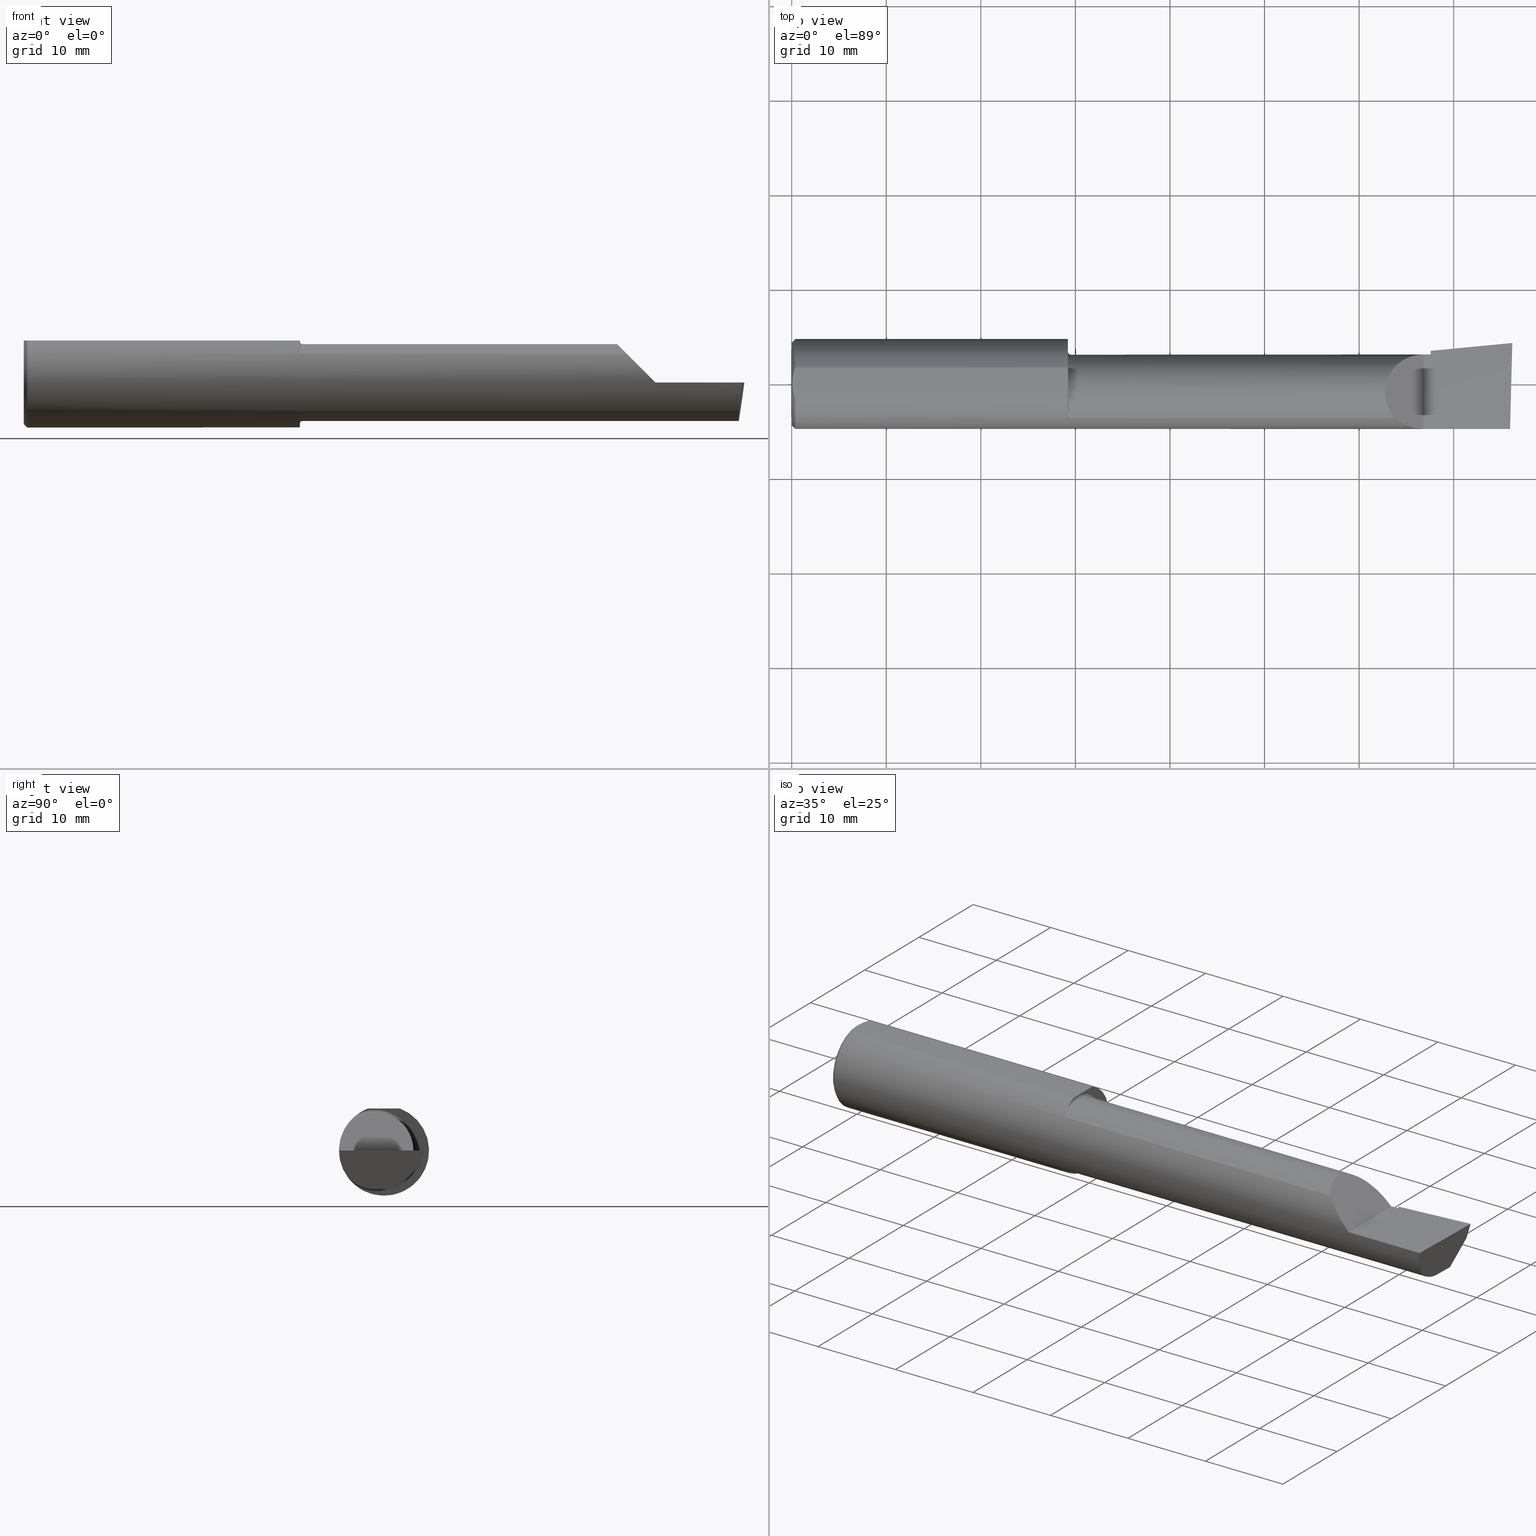
[diagram: canonical four-view strip — front | top / right | iso, engineering-drawing reading convention]
A machine part, canonical four-view strip (front | top / right | iso — engineering-drawing reading convention). The complete STEP part file that produces these views, byte-faithful:
ISO-10303-21;
HEADER;
FILE_DESCRIPTION (( 'STEP AP214' ),
    '1' );
FILE_NAME ('B3601800.STEP',
    '2020-05-06T18:22:52',
    ( '' ),
    ( '' ),
    'SwSTEP 2.0',
    'SolidWorks 2018',
    '' );
FILE_SCHEMA (( 'AUTOMOTIVE_DESIGN' ));
ENDSEC;

DATA;
#1 = ORIENTED_EDGE ( 'NONE', *, *, #225, .T. ) ;
#2 = CARTESIAN_POINT ( 'NONE',  ( 1.160000000000000142, -0.1454917112299473902, -0.1180346748349042768 ) ) ;
#3 =( BOUNDED_CURVE ( )  B_SPLINE_CURVE ( 3, ( #583, #493, #575, #405 ),
 .UNSPECIFIED., .F., .T. ) 
 B_SPLINE_CURVE_WITH_KNOTS ( ( 4, 4 ),
 ( 0.6791649766275665856, 1.360746882514762168 ),
 .UNSPECIFIED. ) 
 CURVE ( )  GEOMETRIC_REPRESENTATION_ITEM ( )  RATIONAL_B_SPLINE_CURVE ( ( 1.000000000000000000, 0.9616603987079550553, 0.9616603987079550553, 1.000000000000000000 ) ) 
 REPRESENTATION_ITEM ( '' )  );
#4 = CARTESIAN_POINT ( 'NONE',  ( 2.586590019116435268, -0.1873499999999999610, 0.04340998088356424339 ) ) ;
#5 = CYLINDRICAL_SURFACE ( 'NONE', #334, 0.1600499999999999146 ) ;
#6 = CARTESIAN_POINT ( 'NONE',  ( 2.659999999999999698, -0.03740000000000000269, 0.0000000000000000000 ) ) ;
#7 = CARTESIAN_POINT ( 'NONE',  ( 9.109005653874777379E-19, 0.1226499999999998841, 3.563723795045361633E-16 ) ) ;
#8 = ORIENTED_EDGE ( 'NONE', *, *, #251, .T. ) ;
#9 = ORIENTED_EDGE ( 'NONE', *, *, #76, .T. ) ;
#10 = DIRECTION ( 'NONE',  ( 0.0000000000000000000, -1.000000000000000000, 0.0000000000000000000 ) ) ;
#11 = VECTOR ( 'NONE', #420, 39.37007874015748854 ) ;
#12 = VERTEX_POINT ( 'NONE', #158 ) ;
#13 = VERTEX_POINT ( 'NONE', #417 ) ;
#14 = AXIS2_PLACEMENT_3D ( 'NONE', #380, #413, #109 ) ;
#15 = DIRECTION ( 'NONE',  ( 0.9953961983671787417, 0.09584575252022435599, -1.409044964823803883E-16 ) ) ;
#16 = VERTEX_POINT ( 'NONE', #198 ) ;
#17 = EDGE_CURVE ( 'NONE', #322, #478, #63, .T. ) ;
#18 = CARTESIAN_POINT ( 'NONE',  ( 2.660000000000000142, -0.03740000000000000269, 0.0000000000000000000 ) ) ;
#19 = LINE ( 'NONE', #389, #20 ) ;
#20 = VECTOR ( 'NONE', #466, 39.37007874015748143 ) ;
#21 = ORIENTED_EDGE ( 'NONE', *, *, #149, .T. ) ;
#22 = CARTESIAN_POINT ( 'NONE',  ( 0.0000000000000000000, 2.202527268266512578E-17, 0.1723499999999996424 ) ) ;
#23 = ORIENTED_EDGE ( 'NONE', *, *, #34, .T. ) ;
#24 = PLANE ( 'NONE',  #487 ) ;
#25 = VECTOR ( 'NONE', #180, 39.37007874015748143 ) ;
#26 = ORIENTED_EDGE ( 'NONE', *, *, #255, .F. ) ;
#27 = CARTESIAN_POINT ( 'NONE',  ( 0.0000000000000000000, 0.0000000000000000000, 0.0000000000000000000 ) ) ;
#28 = PLANE ( 'NONE',  #14 ) ;
#29 = ADVANCED_FACE ( 'NONE', ( #272 ), #28, .T. ) ;
#30 = EDGE_LOOP ( 'NONE', ( #593, #498, #125, #168 ) ) ;
#31 = CARTESIAN_POINT ( 'NONE',  ( 1.160000000000000142, -0.1454917112299473902, 0.1180346748349042768 ) ) ;
#32 = B_SPLINE_CURVE_WITH_KNOTS ( 'NONE', 3,
 ( #2, #533, #430, #94, #352, #99, #528, #475, #45, #564, #532, #248, #569, #97 ),
 .UNSPECIFIED., .F., .F.,
 ( 4, 2, 2, 2, 2, 2, 4 ),
 ( 1.967643395620002325E-07, 5.001319782656137654E-05, 9.982963131356075023E-05, 0.0001994624982875594840, 0.0003987282322355602585, 0.0007972597001315618074, 0.001594322635923565989 ),
 .UNSPECIFIED. ) ;
#33 = CIRCLE ( 'NONE', #126, 0.1600499999999997758 ) ;
#34 = EDGE_CURVE ( 'NONE', #259, #329, #113, .T. ) ;
#35 = SHAPE_DEFINITION_REPRESENTATION ( #213, #136 ) ;
#36 = ORIENTED_EDGE ( 'NONE', *, *, #568, .F. ) ;
#37 = SURFACE_SIDE_STYLE ('',( #175 ) ) ;
#38 = ORIENTED_EDGE ( 'NONE', *, *, #273, .F. ) ;
#39 = PRODUCT_RELATED_PRODUCT_CATEGORY ( 'part', '', ( #263 ) ) ;
#40 = DIRECTION ( 'NONE',  ( 0.0000000000000000000, -1.000000000000000000, 0.0000000000000000000 ) ) ;
#41 = VECTOR ( 'NONE', #556, 39.37007874015748143 ) ;
#42 = AXIS2_PLACEMENT_3D ( 'NONE', #353, #157, #10 ) ;
#43 = CARTESIAN_POINT ( 'NONE',  ( 2.977223734188808368, -0.1454917112299468074, -0.1180346748349050540 ) ) ;
#44 = ORIENTED_EDGE ( 'NONE', *, *, #317, .F. ) ;
#45 = CARTESIAN_POINT ( 'NONE',  ( 1.154404192622242142, -0.1382376748423456703, -0.1264781021717274467 ) ) ;
#46 = CONICAL_SURFACE ( 'NONE', #122, 0.1873499999999999888, 0.7853981633974602694 ) ;
#47 = FACE_OUTER_BOUND ( 'NONE', #541, .T. ) ;
#48 = DIRECTION ( 'NONE',  ( 0.0000000000000000000, 0.0000000000000000000, -1.000000000000000000 ) ) ;
#49 = PLANE ( 'NONE',  #367 ) ;
#50 = FILL_AREA_STYLE ('',( #203 ) ) ;
#51 = CARTESIAN_POINT ( 'NONE',  ( 0.003000000000000218638, 2.334609607045083916E-17, 0.1753499999999999781 ) ) ;
#52 = ORIENTED_EDGE ( 'NONE', *, *, #314, .F. ) ;
#53 = PRODUCT_CONTEXT ( 'NONE', #361, 'mechanical' ) ;
#54 = CARTESIAN_POINT ( 'NONE',  ( 3.000000000000013323, 0.1706500000000293615, 9.155799222047003664E-14 ) ) ;
#55 = AXIS2_PLACEMENT_3D ( 'NONE', #337, #135, #238 ) ;
#56 = FACE_OUTER_BOUND ( 'NONE', #548, .T. ) ;
#57 =( BOUNDED_CURVE ( )  B_SPLINE_CURVE ( 3, ( #43, #587, #549, #282 ),
 .UNSPECIFIED., .F., .F. ) 
 B_SPLINE_CURVE_WITH_KNOTS ( ( 4, 4 ),
 ( 5.751779107031517846, 6.493234751459720400 ),
 .UNSPECIFIED. ) 
 CURVE ( )  GEOMETRIC_REPRESENTATION_ITEM ( )  RATIONAL_B_SPLINE_CURVE ( ( 1.000000000000000000, 0.9547092712975350226, 0.9547092712975350226, 1.000000000000000000 ) ) 
 REPRESENTATION_ITEM ( '' )  );
#58 = EDGE_CURVE ( 'NONE', #310, #259, #116, .T. ) ;
#59 = COLOUR_RGB ( '',0.7529411764705882248, 0.7529411764705882248, 0.7529411764705882248 ) ;
#60 = ORIENTED_EDGE ( 'NONE', *, *, #151, .T. ) ;
#61 = FACE_OUTER_BOUND ( 'NONE', #231, .T. ) ;
#62 = DIRECTION ( 'NONE',  ( -1.000000000000000000, -0.0000000000000000000, -0.0000000000000000000 ) ) ;
#63 = LINE ( 'NONE', #219, #139 ) ;
#64 = B_SPLINE_CURVE_WITH_KNOTS ( 'NONE', 3,
 ( #130, #415, #506, #416, #220, #546 ),
 .UNSPECIFIED., .F., .F.,
 ( 4, 2, 4 ),
 ( 0.003480013901590607410, 0.004330767971208085432, 0.005181522040825563453 ),
 .UNSPECIFIED. ) ;
#65 = DIRECTION ( 'NONE',  ( 1.000000000000000000, 0.0000000000000000000, 0.0000000000000000000 ) ) ;
#66 = EDGE_CURVE ( 'NONE', #184, #16, #585, .T. ) ;
#67 = ORIENTED_EDGE ( 'NONE', *, *, #244, .F. ) ;
#68 = ORIENTED_EDGE ( 'NONE', *, *, #261, .F. ) ;
#69 = DIRECTION ( 'NONE',  ( -1.671023757235059908E-18, -0.2936076258024052921, -0.9559260233253797923 ) ) ;
#70 = FACE_OUTER_BOUND ( 'NONE', #438, .T. ) ;
#71 = DIRECTION ( 'NONE',  ( -5.691349986800549142E-18, -1.000000000000000000, 0.0000000000000000000 ) ) ;
#72 =( GEOMETRIC_REPRESENTATION_CONTEXT ( 3 ) GLOBAL_UNCERTAINTY_ASSIGNED_CONTEXT ( ( #436 ) ) GLOBAL_UNIT_ASSIGNED_CONTEXT ( ( #295, #561, #235 ) ) REPRESENTATION_CONTEXT ( 'NONE', 'WORKASPACE' ) );
#73 = TOROIDAL_SURFACE ( 'NONE', #221, 0.1700499999999998124, 0.01000000000000002102 ) ;
#74 = CARTESIAN_POINT ( 'NONE',  ( 0.01499999999999999424, 0.06597272163553677404, 0.1753499999999999226 ) ) ;
#75 = CARTESIAN_POINT ( 'NONE',  ( 1.150000000000000133, -0.1013606951871667550, 0.1575627873933888867 ) ) ;
#76 = EDGE_CURVE ( 'NONE', #170, #332, #266, .T. ) ;
#77 = EDGE_LOOP ( 'NONE', ( #114, #9, #414, #360 ) ) ;
#78 = LINE ( 'NONE', #395, #242 ) ;
#79 = ADVANCED_FACE ( 'NONE', ( #100 ), #172, .T. ) ;
#80 = EDGE_CURVE ( 'NONE', #297, #179, #425, .T. ) ;
#81 = VECTOR ( 'NONE', #312, 39.37007874015748143 ) ;
#82 = FACE_OUTER_BOUND ( 'NONE', #456, .T. ) ;
#83 =( BOUNDED_CURVE ( )  B_SPLINE_CURVE ( 3, ( #98, #4, #191, #303 ),
 .UNSPECIFIED., .F., .T. ) 
 B_SPLINE_CURVE_WITH_KNOTS ( ( 4, 4 ),
 ( 4.712388980384689674, 5.393970886271887366 ),
 .UNSPECIFIED. ) 
 CURVE ( )  GEOMETRIC_REPRESENTATION_ITEM ( )  RATIONAL_B_SPLINE_CURVE ( ( 1.000000000000000000, 0.9616603987079549443, 0.9616603987079549443, 1.000000000000000000 ) ) 
 REPRESENTATION_ITEM ( '' )  );
#84 = DIRECTION ( 'NONE',  ( 0.0000000000000000000, 0.2936076258024052366, 0.9559260233253797923 ) ) ;
#85 = VERTEX_POINT ( 'NONE', #253 ) ;
#86 = ORIENTED_EDGE ( 'NONE', *, *, #17, .T. ) ;
#87 = ORIENTED_EDGE ( 'NONE', *, *, #199, .F. ) ;
#88 = DIRECTION ( 'NONE',  ( 0.0000000000000000000, 0.6963153109074925462, 0.7177360153954948085 ) ) ;
#89 = FACE_OUTER_BOUND ( 'NONE', #543, .T. ) ;
#90 = FILL_AREA_STYLE_COLOUR ( '', #204 ) ;
#91 = AXIS2_PLACEMENT_3D ( 'NONE', #521, #424, #84 ) ;
#92 = CIRCLE ( 'NONE', #577, 0.1723499999999996424 ) ;
#93 = PRESENTATION_STYLE_ASSIGNMENT (( #111 ) ) ;
#94 = CARTESIAN_POINT ( 'NONE',  ( 1.157909242887170453, -0.1445870704379424998, -0.1191421054870949042 ) ) ;
#95 = VERTEX_POINT ( 'NONE', #223 ) ;
#96 = AXIS2_PLACEMENT_3D ( 'NONE', #450, #421, #227 ) ;
#97 = CARTESIAN_POINT ( 'NONE',  ( 1.150000000000000133, -0.1013606951871667550, -0.1575627873933888867 ) ) ;
#98 = CARTESIAN_POINT ( 'NONE',  ( 2.629999999999999893, -0.1873499999999999888, -1.592040838891560883E-17 ) ) ;
#99 = CARTESIAN_POINT ( 'NONE',  ( 1.156664569472227955, -0.1431262185210695759, -0.1208975608635225463 ) ) ;
#100 = FACE_OUTER_BOUND ( 'NONE', #77, .T. ) ;
#101 = AXIS2_PLACEMENT_3D ( 'NONE', #313, #439, #112 ) ;
#102 = LINE ( 'NONE', #379, #212 ) ;
#103 = PLANE ( 'NONE',  #190 ) ;
#104 = CARTESIAN_POINT ( 'NONE',  ( 2.992127980275562482, 0.1514633278254525761, -0.05999999999999999778 ) ) ;
#105 = ORIENTED_EDGE ( 'NONE', *, *, #364, .T. ) ;
#106 = ORIENTED_EDGE ( 'NONE', *, *, #236, .F. ) ;
#107 = CARTESIAN_POINT ( 'NONE',  ( 2.511965325165093521, -0.1454917112299465853, 0.1180346748349052760 ) ) ;
#108 = ORIENTED_EDGE ( 'NONE', *, *, #283, .F. ) ;
#109 = DIRECTION ( 'NONE',  ( -5.691349986800549142E-18, -1.000000000000000000, 0.0000000000000000000 ) ) ;
#110 = EDGE_CURVE ( 'NONE', #310, #95, #320, .T. ) ;
#111 = SURFACE_STYLE_USAGE ( .BOTH. , #402 ) ;
#112 = DIRECTION ( 'NONE',  ( 0.1219104985252887768, 0.0000000000000000000, 0.9925410975618670362 ) ) ;
#113 = LINE ( 'NONE', #326, #81 ) ;
#114 = ORIENTED_EDGE ( 'NONE', *, *, #273, .T. ) ;
#115 = ORIENTED_EDGE ( 'NONE', *, *, #119, .T. ) ;
#116 = B_SPLINE_CURVE_WITH_KNOTS ( 'NONE', 3,
 ( #431, #458, #307, #258, #510, #574, #572, #570, #552, #545, #537, #536, #534, #508 ),
 .UNSPECIFIED., .F., .F.,
 ( 4, 2, 2, 2, 2, 2, 4 ),
 ( 0.0006605532644857246925, 0.001446564801351223669, 0.001839570569783973699, 0.002036073454000349690, 0.002134324896108538011, 0.002183450617162631738, 0.002232576338216725898 ),
 .UNSPECIFIED. ) ;
#117 = CARTESIAN_POINT ( 'NONE',  ( 0.003000000000000171800, -0.01126410975715119375, 0.1753500000000000059 ) ) ;
#118 = CIRCLE ( 'NONE', #539, 0.1873499999999999888 ) ;
#119 = EDGE_CURVE ( 'NONE', #153, #142, #411, .T. ) ;
#120 = ORIENTED_EDGE ( 'NONE', *, *, #225, .F. ) ;
#121 = CARTESIAN_POINT ( 'NONE',  ( 0.01499999999999999424, 0.0000000000000000000, 0.0000000000000000000 ) ) ;
#122 = AXIS2_PLACEMENT_3D ( 'NONE', #121, #65, #410 ) ;
#123 = ORIENTED_EDGE ( 'NONE', *, *, #328, .F. ) ;
#124 = DIRECTION ( 'NONE',  ( 1.000000000000000000, 0.0000000000000000000, 0.0000000000000000000 ) ) ;
#125 = ORIENTED_EDGE ( 'NONE', *, *, #515, .F. ) ;
#126 = AXIS2_PLACEMENT_3D ( 'NONE', #333, #589, #40 ) ;
#127 = CARTESIAN_POINT ( 'NONE',  ( 3.000188977433813520, 0.1711105994646681117, 0.001440373173037378914 ) ) ;
#128 = CARTESIAN_POINT ( 'NONE',  ( 2.659999999999999698, 0.1346188438362104778, -0.01072093908174515803 ) ) ;
#129 = VERTEX_POINT ( 'NONE', #454 ) ;
#130 = CARTESIAN_POINT ( 'NONE',  ( 0.003000000000000218638, 2.334609607045083916E-17, 0.1753499999999999781 ) ) ;
#131 = PRESENTATION_LAYER_ASSIGNMENT (  '', '', ( #397 ) ) ;
#132 = ORIENTED_EDGE ( 'NONE', *, *, #460, .F. ) ;
#133 = EDGE_LOOP ( 'NONE', ( #239, #237, #388, #115, #404, #287 ) ) ;
#134 = CARTESIAN_POINT ( 'NONE',  ( 2.659999999999999698, 0.1379117236128366286, 0.0000000000000000000 ) ) ;
#135 = DIRECTION ( 'NONE',  ( -1.415561931153809475E-16, 0.0000000000000000000, -1.000000000000000000 ) ) ;
#136 = ADVANCED_BREP_SHAPE_REPRESENTATION ( 'B3601800', ( #195, #444 ), #205 ) ;
#137 = ADVANCED_FACE ( 'NONE', ( #308 ), #73, .F. ) ;
#138 = CARTESIAN_POINT ( 'NONE',  ( 2.659999999999999698, 0.02241901528670496579, -0.1600499999999999701 ) ) ;
#139 = VECTOR ( 'NONE', #230, 39.37007874015748143 ) ;
#140 = CARTESIAN_POINT ( 'NONE',  ( 0.0000000000000000000, 0.0000000000000000000, -0.1723499999999996424 ) ) ;
#141 = ADVANCED_FACE ( 'NONE', ( #435 ), #5, .T. ) ;
#142 = VERTEX_POINT ( 'NONE', #54 ) ;
#143 = EDGE_LOOP ( 'NONE', ( #60, #474 ) ) ;
#144 = DIRECTION ( 'NONE',  ( 0.0000000000000000000, 0.0000000000000000000, 1.000000000000000000 ) ) ;
#145 = PLANE ( 'NONE',  #91 ) ;
#146 = DIRECTION ( 'NONE',  ( 1.000000000000000000, 0.0000000000000000000, 0.0000000000000000000 ) ) ;
#147 = VERTEX_POINT ( 'NONE', #51 ) ;
#148 = ORIENTED_EDGE ( 'NONE', *, *, #249, .F. ) ;
#149 = EDGE_CURVE ( 'NONE', #297, #12, #384, .T. ) ;
#150 = LINE ( 'NONE', #274, #538 ) ;
#151 = EDGE_CURVE ( 'NONE', #275, #563, #92, .T. ) ;
#152 = DIRECTION ( 'NONE',  ( 1.000000000000000000, -5.691349986800549142E-18, 0.0000000000000000000 ) ) ;
#153 = VERTEX_POINT ( 'NONE', #104 ) ;
#154 = CARTESIAN_POINT ( 'NONE',  ( 1.160000000000000142, -0.03740000000000000269, 0.0000000000000000000 ) ) ;
#155 = CIRCLE ( 'NONE', #523, 0.1723499999999996424 ) ;
#156 = EDGE_CURVE ( 'NONE', #524, #329, #83, .T. ) ;
#157 = DIRECTION ( 'NONE',  ( -1.000000000000000000, 5.691349986800549142E-18, -0.0000000000000000000 ) ) ;
#158 = CARTESIAN_POINT ( 'NONE',  ( 2.659999999999999698, 0.1028057716897401025, -0.07719031082256659626 ) ) ;
#159 =( CONVERSION_BASED_UNIT ( 'INCH', #447 ) LENGTH_UNIT ( ) NAMED_UNIT ( #330 ) );
#160 = APPLICATION_PROTOCOL_DEFINITION ( 'draft international standard', 'automotive_design', 1998, #311 ) ;
#161 = ORIENTED_EDGE ( 'NONE', *, *, #236, .T. ) ;
#162 = PRODUCT_DEFINITION ( 'UNKNOWN', '', #470, #547 ) ;
#163 = ORIENTED_EDGE ( 'NONE', *, *, #210, .F. ) ;
#164 = PLANE ( 'NONE',  #409 ) ;
#165 = DIRECTION ( 'NONE',  ( 0.0000000000000000000, 1.000000000000000000, 0.0000000000000000000 ) ) ;
#166 = VECTOR ( 'NONE', #485, 39.37007874015748143 ) ;
#167 = DIRECTION ( 'NONE',  ( -1.000000000000000000, 5.691349986800549142E-18, -0.0000000000000000000 ) ) ;
#168 = ORIENTED_EDGE ( 'NONE', *, *, #382, .T. ) ;
#169 = DIRECTION ( 'NONE',  ( 0.0000000000000000000, 0.0000000000000000000, 1.000000000000000000 ) ) ;
#170 = VERTEX_POINT ( 'NONE', #432 ) ;
#171 = CIRCLE ( 'NONE', #544, 0.1600500000000000533 ) ;
#172 = PLANE ( 'NONE',  #96 ) ;
#173 = CARTESIAN_POINT ( 'NONE',  ( 0.0000000000000000000, 0.0000000000000000000, 0.0000000000000000000 ) ) ;
#174 = VECTOR ( 'NONE', #291, 39.37007874015748143 ) ;
#175 = SURFACE_STYLE_FILL_AREA ( #391 ) ;
#176 = CARTESIAN_POINT ( 'NONE',  ( 2.659999999999999698, -0.2500000000000000555, -2.016709418237695393E-17 ) ) ;
#177 = EDGE_CURVE ( 'NONE', #259, #478, #33, .T. ) ;
#178 = CARTESIAN_POINT ( 'NONE',  ( 2.511965325165093521, -0.1454917112299465853, 0.1180346748349052760 ) ) ;
#179 = VERTEX_POINT ( 'NONE', #138 ) ;
#180 = DIRECTION ( 'NONE',  ( -3.962974135542378101E-18, -0.6963153109074925462, -0.7177360153954948085 ) ) ;
#181 = CARTESIAN_POINT ( 'NONE',  ( 2.659999999999999698, -0.03740000000000000269, -0.1600499999999999701 ) ) ;
#182 = ADVANCED_FACE ( 'NONE', ( #461 ), #509, .T. ) ;
#183 = CARTESIAN_POINT ( 'NONE',  ( 0.01499999999999999424, 0.0000000000000000000, 0.0000000000000000000 ) ) ;
#184 = VERTEX_POINT ( 'NONE', #381 ) ;
#185 = DIRECTION ( 'NONE',  ( 0.7071067811865390240, 0.0000000000000000000, -0.7071067811865560104 ) ) ;
#186 = LINE ( 'NONE', #426, #260 ) ;
#187 = ORIENTED_EDGE ( 'NONE', *, *, #17, .F. ) ;
#188 = AXIS2_PLACEMENT_3D ( 'NONE', #6, #558, #453 ) ;
#189 = ORIENTED_EDGE ( 'NONE', *, *, #515, .T. ) ;
#190 = AXIS2_PLACEMENT_3D ( 'NONE', #194, #354, #48 ) ;
#191 = CARTESIAN_POINT ( 'NONE',  ( 2.545676520271627385, -0.1728409665178087251, 0.08432347972837181405 ) ) ;
#192 = CYLINDRICAL_SURFACE ( 'NONE', #535, 0.1873499999999999888 ) ;
#193 = DIRECTION ( 'NONE',  ( -1.000000000000000000, -0.0000000000000000000, -0.0000000000000000000 ) ) ;
#194 = CARTESIAN_POINT ( 'NONE',  ( 0.0000000000000000000, 0.0000000000000000000, 0.0000000000000000000 ) ) ;
#195 = MANIFOLD_SOLID_BREP ( '7F1CB05C-6BE0-4437-8D9E-CB354DC0C69A-GAAFaceID8', #559 ) ;
#196 = VECTOR ( 'NONE', #280, 39.37007874015748143 ) ;
#197 = VERTEX_POINT ( 'NONE', #181 ) ;
#198 = CARTESIAN_POINT ( 'NONE',  ( 2.974893613600465336, -0.03740000000000000269, -0.1600499999999999701 ) ) ;
#199 = EDGE_CURVE ( 'NONE', #518, #170, #344, .T. ) ;
#200 = ORIENTED_EDGE ( 'NONE', *, *, #442, .F. ) ;
#201 = EDGE_CURVE ( 'NONE', #275, #13, #186, .T. ) ;
#202 =( NAMED_UNIT ( * ) SI_UNIT ( $, .STERADIAN. ) SOLID_ANGLE_UNIT ( ) );
#203 = FILL_AREA_STYLE_COLOUR ( '', #59 ) ;
#204 = COLOUR_RGB ( '',0.7529411764705882248, 0.7529411764705882248, 0.7529411764705882248 ) ;
#205 =( GEOMETRIC_REPRESENTATION_CONTEXT ( 3 ) GLOBAL_UNCERTAINTY_ASSIGNED_CONTEXT ( ( #428 ) ) GLOBAL_UNIT_ASSIGNED_CONTEXT ( ( #477, #348, #254 ) ) REPRESENTATION_CONTEXT ( 'NONE', 'WORKASPACE' ) );
#206 =( BOUNDED_CURVE ( )  B_SPLINE_CURVE ( 3, ( #178, #471, #396, #527 ),
 .UNSPECIFIED., .F., .F. ) 
 B_SPLINE_CURVE_WITH_KNOTS ( ( 4, 4 ),
 ( 5.541729662751385455, 7.853981633974482790 ),
 .UNSPECIFIED. ) 
 CURVE ( )  GEOMETRIC_REPRESENTATION_ITEM ( )  RATIONAL_B_SPLINE_CURVE ( ( 1.000000000000000000, 0.6019254882129718709, 0.6019254882129718709, 1.000000000000000000 ) ) 
 REPRESENTATION_ITEM ( '' )  );
#207 = PLANE ( 'NONE',  #101 ) ;
#208 = DIRECTION ( 'NONE',  ( 0.0000000000000000000, 1.000000000000000000, 0.0000000000000000000 ) ) ;
#209 = ORIENTED_EDGE ( 'NONE', *, *, #351, .T. ) ;
#210 = EDGE_CURVE ( 'NONE', #12, #297, #581, .T. ) ;
#211 = VERTEX_POINT ( 'NONE', #596 ) ;
#212 = VECTOR ( 'NONE', #457, 39.37007874015748854 ) ;
#213 = PRODUCT_DEFINITION_SHAPE ( 'NONE', 'NONE',  #162 ) ;
#214 = ORIENTED_EDGE ( 'NONE', *, *, #364, .F. ) ;
#215 = ORIENTED_EDGE ( 'NONE', *, *, #80, .F. ) ;
#216 = DIRECTION ( 'NONE',  ( 0.0000000000000000000, -1.438723400918613551E-16, -1.000000000000000000 ) ) ;
#217 = LINE ( 'NONE', #7, #336 ) ;
#218 = CARTESIAN_POINT ( 'NONE',  ( 2.990625440078233499, -0.1873499999999999888, -6.699231446134777283E-17 ) ) ;
#219 = CARTESIAN_POINT ( 'NONE',  ( 1.910000000000000142, -0.1454917112299468074, -0.1180346748349050540 ) ) ;
#220 = CARTESIAN_POINT ( 'NONE',  ( 0.01125230581755091823, 0.05532998191409932431, 0.1753500000000000059 ) ) ;
#221 = AXIS2_PLACEMENT_3D ( 'NONE', #154, #340, #383 ) ;
#222 = ORIENTED_EDGE ( 'NONE', *, *, #351, .F. ) ;
#223 = CARTESIAN_POINT ( 'NONE',  ( 1.150000000000000133, -0.1013606951871667550, -0.1575627873933888867 ) ) ;
#224 = DIRECTION ( 'NONE',  ( -0.0000000000000000000, 0.0000000000000000000, 1.000000000000000000 ) ) ;
#225 = EDGE_CURVE ( 'NONE', #524, #129, #448, .T. ) ;
#226 = PLANE ( 'NONE',  #55 ) ;
#227 = DIRECTION ( 'NONE',  ( 5.691349986800549142E-18, 1.000000000000000000, 0.0000000000000000000 ) ) ;
#228 = ADVANCED_FACE ( 'NONE', ( #408 ), #145, .T. ) ;
#229 = LINE ( 'NONE', #423, #41 ) ;
#230 = DIRECTION ( 'NONE',  ( -1.000000000000000000, 5.691349986800549142E-18, -0.0000000000000000000 ) ) ;
#231 = EDGE_LOOP ( 'NONE', ( #497, #358, #1 ) ) ;
#232 = ORIENTED_EDGE ( 'NONE', *, *, #390, .T. ) ;
#233 = DIRECTION ( 'NONE',  ( -0.0000000000000000000, 1.000000000000000000, -0.0000000000000000000 ) ) ;
#234 = CARTESIAN_POINT ( 'NONE',  ( 2.974910817315464584, -0.03674301662998782220, -0.1600499999999999701 ) ) ;
#235 =( NAMED_UNIT ( * ) SI_UNIT ( $, .STERADIAN. ) SOLID_ANGLE_UNIT ( ) );
#236 = EDGE_CURVE ( 'NONE', #16, #197, #19, .T. ) ;
#237 = ORIENTED_EDGE ( 'NONE', *, *, #66, .F. ) ;
#238 = DIRECTION ( 'NONE',  ( -1.000000000000000000, 0.0000000000000000000, 1.415561931153809475E-16 ) ) ;
#239 = ORIENTED_EDGE ( 'NONE', *, *, #317, .T. ) ;
#240 = DIRECTION ( 'NONE',  ( -0.06894566448119621160, 0.7160281025913034503, -0.6946583704589934793 ) ) ;
#241 = ORIENTED_EDGE ( 'NONE', *, *, #299, .T. ) ;
#242 = VECTOR ( 'NONE', #15, 39.37007874015748143 ) ;
#243 = CARTESIAN_POINT ( 'NONE',  ( 3.000000000000000444, -0.03740000000000000269, -0.1600499999999999701 ) ) ;
#244 = EDGE_CURVE ( 'NONE', #518, #13, #488, .T. ) ;
#245 = DIRECTION ( 'NONE',  ( 5.691349986800549142E-18, 1.000000000000000000, -8.056458378187594471E-34 ) ) ;
#246 = LINE ( 'NONE', #516, #11 ) ;
#247 = LINE ( 'NONE', #301, #385 ) ;
#248 = CARTESIAN_POINT ( 'NONE',  ( 1.150483388365424187, -0.1180160148311112794, -0.1458664675357409513 ) ) ;
#249 = EDGE_CURVE ( 'NONE', #445, #524, #562, .T. ) ;
#250 = ORIENTED_EDGE ( 'NONE', *, *, #201, .T. ) ;
#251 = EDGE_CURVE ( 'NONE', #13, #211, #257, .T. ) ;
#252 = DIRECTION ( 'NONE',  ( -5.691349986800549142E-18, -1.000000000000000000, 0.0000000000000000000 ) ) ;
#253 = CARTESIAN_POINT ( 'NONE',  ( 2.659999999999999698, 0.1379117236128415691, 3.606893054134847731E-16 ) ) ;
#254 =( NAMED_UNIT ( * ) SI_UNIT ( $, .STERADIAN. ) SOLID_ANGLE_UNIT ( ) );
#255 = EDGE_CURVE ( 'NONE', #563, #147, #229, .T. ) ;
#256 = DIRECTION ( 'NONE',  ( 0.0000000000000000000, 0.0000000000000000000, 1.000000000000000000 ) ) ;
#257 = CIRCLE ( 'NONE', #595, 0.1873499999999999888 ) ;
#258 = CARTESIAN_POINT ( 'NONE',  ( 1.152149571221040114, -0.1293863363941691047, 0.1355911774285935012 ) ) ;
#259 = VERTEX_POINT ( 'NONE', #31 ) ;
#260 = VECTOR ( 'NONE', #185, 39.37007874015748143 ) ;
#261 = EDGE_CURVE ( 'NONE', #184, #179, #246, .T. ) ;
#262 = ORIENTED_EDGE ( 'NONE', *, *, #394, .F. ) ;
#263 = PRODUCT ( 'B3601800', 'B3601800', '', ( #53 ) ) ;
#264 = CONICAL_SURFACE ( 'NONE', #599, 0.1873499999999999888, 0.7853981633974602694 ) ;
#265 = CARTESIAN_POINT ( 'NONE',  ( 0.003000000000000218638, 2.334609607045083916E-17, 0.1753499999999999781 ) ) ;
#266 = LINE ( 'NONE', #476, #166 ) ;
#267 = UNCERTAINTY_MEASURE_WITH_UNIT (LENGTH_MEASURE( 1.000000000000000082E-05 ), #159, 'distance_accuracy_value', 'NONE');
#268 = ORIENTED_EDGE ( 'NONE', *, *, #390, .F. ) ;
#269 = DIRECTION ( 'NONE',  ( -0.7071067811865516806, 0.0000000000000000000, 0.7071067811865432429 ) ) ;
#270 = ORIENTED_EDGE ( 'NONE', *, *, #210, .T. ) ;
#271 = DIRECTION ( 'NONE',  ( -1.000000000000000000, 5.691349986800549142E-18, -0.0000000000000000000 ) ) ;
#272 = FACE_OUTER_BOUND ( 'NONE', #277, .T. ) ;
#273 = EDGE_CURVE ( 'NONE', #95, #170, #347, .T. ) ;
#274 = CARTESIAN_POINT ( 'NONE',  ( 2.659999999999999698, 0.1010446066476775456, -0.07900565447499383054 ) ) ;
#275 = VERTEX_POINT ( 'NONE', #140 ) ;
#276 = VECTOR ( 'NONE', #233, 39.37007874015748143 ) ;
#277 = EDGE_LOOP ( 'NONE', ( #241, #189, #531, #507 ) ) ;
#278 = CARTESIAN_POINT ( 'NONE',  ( 2.629999999999999893, -0.2500000000000000555, -1.592040838891560883E-17 ) ) ;
#279 = VECTOR ( 'NONE', #165, 39.37007874015748143 ) ;
#280 = DIRECTION ( 'NONE',  ( -3.962974135542378101E-18, -0.6963153109074925462, -0.7177360153954948085 ) ) ;
#281 = FACE_OUTER_BOUND ( 'NONE', #318, .T. ) ;
#282 = CARTESIAN_POINT ( 'NONE',  ( 2.974893613600465336, -0.03740000000000000269, -0.1600499999999999701 ) ) ;
#283 = EDGE_CURVE ( 'NONE', #332, #211, #294, .T. ) ;
#284 = DIRECTION ( 'NONE',  ( 1.000000000000000000, -5.691349986800549142E-18, 0.0000000000000000000 ) ) ;
#285 = ADVANCED_FACE ( 'NONE', ( #56 ), #226, .F. ) ;
#286 = SURFACE_STYLE_FILL_AREA ( #50 ) ;
#287 = ORIENTED_EDGE ( 'NONE', *, *, #591, .F. ) ;
#288 = DIRECTION ( 'NONE',  ( -1.000000000000000000, -0.0000000000000000000, -0.0000000000000000000 ) ) ;
#289 = EDGE_CURVE ( 'NONE', #329, #129, #206, .T. ) ;
#290 = ADVANCED_FACE ( 'NONE', ( #281 ), #566, .F. ) ;
#291 = DIRECTION ( 'NONE',  ( -1.000000000000000000, -0.0000000000000000000, -0.0000000000000000000 ) ) ;
#292 = AXIS2_PLACEMENT_3D ( 'NONE', #590, #284, #551 ) ;
#293 = CARTESIAN_POINT ( 'NONE',  ( 2.629999999999999893, -0.2500000000000000555, -1.592040838891560883E-17 ) ) ;
#294 = LINE ( 'NONE', #339, #513 ) ;
#295 =( CONVERSION_BASED_UNIT ( 'INCH', #560 ) LENGTH_UNIT ( ) NAMED_UNIT ( #588 ) );
#296 = ORIENTED_EDGE ( 'NONE', *, *, #382, .F. ) ;
#297 = VERTEX_POINT ( 'NONE', #525 ) ;
#298 = FACE_OUTER_BOUND ( 'NONE', #133, .T. ) ;
#299 = EDGE_CURVE ( 'NONE', #492, #85, #355, .T. ) ;
#300 = CIRCLE ( 'NONE', #302, 0.1600500000000000533 ) ;
#301 = CARTESIAN_POINT ( 'NONE',  ( 2.992483720199182518, 0.1538199878950237132, -0.05760614975163623475 ) ) ;
#302 = AXIS2_PLACEMENT_3D ( 'NONE', #18, #167, #500 ) ;
#303 = CARTESIAN_POINT ( 'NONE',  ( 2.511965325165093521, -0.1454917112299465853, 0.1180346748349052760 ) ) ;
#304 = CARTESIAN_POINT ( 'NONE',  ( 2.659999999999999698, 0.1010446066476775456, -0.07900565447499383054 ) ) ;
#305 = DIRECTION ( 'NONE',  ( 1.000000000000000000, -5.691349986800549142E-18, 0.0000000000000000000 ) ) ;
#306 = VECTOR ( 'NONE', #69, 39.37007874015748854 ) ;
#307 = CARTESIAN_POINT ( 'NONE',  ( 1.150493306168247853, -0.1180879943980271130, 0.1458023451353276934 ) ) ;
#308 = FACE_OUTER_BOUND ( 'NONE', #522, .T. ) ;
#309 = APPLICATION_PROTOCOL_DEFINITION ( 'draft international standard', 'automotive_design', 1998, #361 ) ;
#310 = VERTEX_POINT ( 'NONE', #75 ) ;
#311 = APPLICATION_CONTEXT ( 'automotive_design' ) ;
#312 = DIRECTION ( 'NONE',  ( 1.000000000000000000, -5.691349986800549142E-18, 0.0000000000000000000 ) ) ;
#313 = CARTESIAN_POINT ( 'NONE',  ( 2.972657716785286119, -0.1026153499216720943, -0.1643501480114536728 ) ) ;
#314 = EDGE_CURVE ( 'NONE', #153, #324, #102, .T. ) ;
#315 = ORIENTED_EDGE ( 'NONE', *, *, #80, .T. ) ;
#316 = CARTESIAN_POINT ( 'NONE',  ( 0.01128414053810044074, -0.05542038647445821781, 0.1753499999999999781 ) ) ;
#317 = EDGE_CURVE ( 'NONE', #322, #16, #57, .T. ) ;
#318 = EDGE_LOOP ( 'NONE', ( #68, #502, #161, #232 ) ) ;
#319 = DIRECTION ( 'NONE',  ( 0.0000000000000000000, 0.0000000000000000000, -1.000000000000000000 ) ) ;
#320 = CIRCLE ( 'NONE', #42, 0.1700499999999997569 ) ;
#321 = DIRECTION ( 'NONE',  ( -1.000000000000000000, -0.0000000000000000000, -0.0000000000000000000 ) ) ;
#322 = VERTEX_POINT ( 'NONE', #331 ) ;
#323 = CARTESIAN_POINT ( 'NONE',  ( 0.01499999999999997863, -0.06597272163553657975, 0.1753499999999999781 ) ) ;
#324 = VERTEX_POINT ( 'NONE', #484 ) ;
#325 = DIRECTION ( 'NONE',  ( 0.1240019227989395123, 0.3022330132596639518, 0.9451342385281308323 ) ) ;
#326 = CARTESIAN_POINT ( 'NONE',  ( 1.910000000000000142, -0.1454917112299468074, 0.1180346748349050540 ) ) ;
#327 = CARTESIAN_POINT ( 'NONE',  ( 2.660000000000000142, 0.1226500000000000368, 3.563723795045366070E-16 ) ) ;
#328 = EDGE_CURVE ( 'NONE', #184, #153, #247, .T. ) ;
#329 = VERTEX_POINT ( 'NONE', #107 ) ;
#330 = DIMENSIONAL_EXPONENTS ( 1.000000000000000000, 0.0000000000000000000, 0.0000000000000000000, 0.0000000000000000000, 0.0000000000000000000, 0.0000000000000000000, 0.0000000000000000000 ) ;
#331 = CARTESIAN_POINT ( 'NONE',  ( 2.977223734188808368, -0.1454917112299468074, -0.1180346748349050540 ) ) ;
#332 = VERTEX_POINT ( 'NONE', #357 ) ;
#333 = CARTESIAN_POINT ( 'NONE',  ( 1.160000000000000142, -0.03739999999999999575, 0.0000000000000000000 ) ) ;
#334 = AXIS2_PLACEMENT_3D ( 'NONE', #377, #374, #401 ) ;
#335 = ADVANCED_FACE ( 'NONE', ( #82 ), #49, .F. ) ;
#336 = VECTOR ( 'NONE', #305, 39.37007874015748143 ) ;
#337 = CARTESIAN_POINT ( 'NONE',  ( 3.000000000000000444, -0.2500000000000000555, -6.829619984160658046E-17 ) ) ;
#338 = EDGE_CURVE ( 'NONE', #445, #142, #479, .T. ) ;
#339 = CARTESIAN_POINT ( 'NONE',  ( 0.0000000000000000000, -0.06597272163553671853, 0.1753499999999999226 ) ) ;
#340 = DIRECTION ( 'NONE',  ( -1.000000000000000000, 5.691349986800549142E-18, -0.0000000000000000000 ) ) ;
#341 = ADVANCED_FACE ( 'NONE', ( #462 ), #103, .F. ) ;
#342 = VECTOR ( 'NONE', #325, 39.37007874015748854 ) ;
#343 = ORIENTED_EDGE ( 'NONE', *, *, #530, .T. ) ;
#344 = LINE ( 'NONE', #427, #571 ) ;
#345 = ORIENTED_EDGE ( 'NONE', *, *, #338, .T. ) ;
#346 = SURFACE_STYLE_USAGE ( .BOTH. , #37 ) ;
#347 = CIRCLE ( 'NONE', #292, 0.1873499999999999888 ) ;
#348 =( NAMED_UNIT ( * ) PLANE_ANGLE_UNIT ( ) SI_UNIT ( $, .RADIAN. ) );
#349 = EDGE_LOOP ( 'NONE', ( #187, #387, #481, #449, #393, #365, #550, #472, #491, #67, #494, #38, #483 ) ) ;
#350 = FACE_OUTER_BOUND ( 'NONE', #371, .T. ) ;
#351 = EDGE_CURVE ( 'NONE', #129, #492, #217, .T. ) ;
#352 = CARTESIAN_POINT ( 'NONE',  ( 1.157567572594822014, -0.1442269357022595289, -0.1195781817710020872 ) ) ;
#353 = CARTESIAN_POINT ( 'NONE',  ( 1.150000000000000133, -0.03739999999999999575, 0.0000000000000000000 ) ) ;
#354 = DIRECTION ( 'NONE',  ( 1.000000000000000000, 0.0000000000000000000, 0.0000000000000000000 ) ) ;
#355 = LINE ( 'NONE', #176, #368 ) ;
#356 = EDGE_CURVE ( 'NONE', #478, #95, #32, .T. ) ;
#357 = CARTESIAN_POINT ( 'NONE',  ( 1.150000000000000133, -0.06597272163553659363, 0.1753499999999999781 ) ) ;
#358 = ORIENTED_EDGE ( 'NONE', *, *, #156, .F. ) ;
#359 = ORIENTED_EDGE ( 'NONE', *, *, #201, .F. ) ;
#360 = ORIENTED_EDGE ( 'NONE', *, *, #110, .T. ) ;
#361 = APPLICATION_CONTEXT ( 'automotive_design' ) ;
#362 = MECHANICAL_DESIGN_GEOMETRIC_PRESENTATION_REPRESENTATION (  '', ( #403 ), #429 ) ;
#363 = CARTESIAN_POINT ( 'NONE',  ( 0.0000000000000000000, 0.0000000000000000000, 0.0000000000000000000 ) ) ;
#364 = EDGE_CURVE ( 'NONE', #297, #197, #171, .T. ) ;
#365 = ORIENTED_EDGE ( 'NONE', *, *, #58, .F. ) ;
#366 = FACE_OUTER_BOUND ( 'NONE', #349, .T. ) ;
#367 = AXIS2_PLACEMENT_3D ( 'NONE', #134, #434, #252 ) ;
#368 = VECTOR ( 'NONE', #245, 39.37007874015748143 ) ;
#369 = ORIENTED_EDGE ( 'NONE', *, *, #261, .T. ) ;
#370 = ORIENTED_EDGE ( 'NONE', *, *, #58, .T. ) ;
#371 = EDGE_LOOP ( 'NONE', ( #26, #392, #250, #8, #526 ) ) ;
#372 = PLANE ( 'NONE',  #582 ) ;
#373 = DIRECTION ( 'NONE',  ( -1.000000000000000000, 5.691349986800549142E-18, 0.0000000000000000000 ) ) ;
#374 = DIRECTION ( 'NONE',  ( -1.000000000000000000, 5.691349986800549142E-18, -0.0000000000000000000 ) ) ;
#375 = ORIENTED_EDGE ( 'NONE', *, *, #110, .F. ) ;
#376 = ORIENTED_EDGE ( 'NONE', *, *, #255, .T. ) ;
#377 = CARTESIAN_POINT ( 'NONE',  ( 0.0000000000000000000, -0.03739999999999998881, 0.0000000000000000000 ) ) ;
#378 = LINE ( 'NONE', #443, #279 ) ;
#379 = CARTESIAN_POINT ( 'NONE',  ( 3.011712141217646188, 0.1533490680423129637, -0.06000000000000001166 ) ) ;
#380 = CARTESIAN_POINT ( 'NONE',  ( 2.659999999999999698, 0.1379117236128366286, 0.0000000000000000000 ) ) ;
#381 = CARTESIAN_POINT ( 'NONE',  ( 2.977259974483422056, 0.05296767626088472181, -0.1600499999999999701 ) ) ;
#382 = EDGE_CURVE ( 'NONE', #85, #142, #78, .T. ) ;
#383 = DIRECTION ( 'NONE',  ( -5.691349986800549142E-18, -1.000000000000000000, 0.0000000000000000000 ) ) ;
#384 = CIRCLE ( 'NONE', #188, 0.1600499999999999146 ) ;
#385 = VECTOR ( 'NONE', #400, 39.37007874015748854 ) ;
#386 = ADVANCED_FACE ( 'NONE', ( #350 ), #46, .T. ) ;
#387 = ORIENTED_EDGE ( 'NONE', *, *, #591, .T. ) ;
#388 = ORIENTED_EDGE ( 'NONE', *, *, #328, .T. ) ;
#389 = CARTESIAN_POINT ( 'NONE',  ( 3.000000000000000444, -0.03740000000000000269, -0.1600499999999999701 ) ) ;
#390 = EDGE_CURVE ( 'NONE', #197, #179, #378, .T. ) ;
#391 = FILL_AREA_STYLE ('',( #90 ) ) ;
#392 = ORIENTED_EDGE ( 'NONE', *, *, #151, .F. ) ;
#393 = ORIENTED_EDGE ( 'NONE', *, *, #34, .F. ) ;
#394 = EDGE_CURVE ( 'NONE', #563, #275, #155, .T. ) ;
#395 = CARTESIAN_POINT ( 'NONE',  ( 0.8393181374772645809, -0.03739999999999999575, 2.375616991505627107E-16 ) ) ;
#396 = CARTESIAN_POINT ( 'NONE',  ( 2.467758842172327771, 0.1226499999999999119, 0.1622411578276702349 ) ) ;
#397 = STYLED_ITEM ( 'NONE', ( #578 ), #195 ) ;
#398 = CARTESIAN_POINT ( 'NONE',  ( 1.150000000000000133, 0.0000000000000000000, 0.0000000000000000000 ) ) ;
#399 = DIRECTION ( 'NONE',  ( 0.02617694830787033883, 0.9996573249755572599, -4.076468941374972475E-18 ) ) ;
#400 = DIRECTION ( 'NONE',  ( 0.1053106618241836795, 0.6976485211320171409, 0.7086580314005209713 ) ) ;
#401 = DIRECTION ( 'NONE',  ( -5.691349986800548372E-18, -1.000000000000000000, 0.0000000000000000000 ) ) ;
#402 = SURFACE_SIDE_STYLE ('',( #286 ) ) ;
#403 = STYLED_ITEM ( 'NONE', ( #93 ), #136 ) ;
#404 = ORIENTED_EDGE ( 'NONE', *, *, #338, .F. ) ;
#405 = CARTESIAN_POINT ( 'NONE',  ( 2.990625440078233499, -0.1873499999999999888, -6.699231446134777283E-17 ) ) ;
#406 = MECHANICAL_DESIGN_GEOMETRIC_PRESENTATION_REPRESENTATION (  '', ( #397 ), #72 ) ;
#407 = ORIENTED_EDGE ( 'NONE', *, *, #76, .F. ) ;
#408 = FACE_OUTER_BOUND ( 'NONE', #30, .T. ) ;
#409 = AXIS2_PLACEMENT_3D ( 'NONE', #580, #216, #542 ) ;
#410 = DIRECTION ( 'NONE',  ( 0.0000000000000000000, 0.0000000000000000000, -1.000000000000000000 ) ) ;
#411 = LINE ( 'NONE', #127, #342 ) ;
#412 = ORIENTED_EDGE ( 'NONE', *, *, #460, .T. ) ;
#413 = DIRECTION ( 'NONE',  ( -1.000000000000000000, 5.691349986800549142E-18, 0.0000000000000000000 ) ) ;
#414 = ORIENTED_EDGE ( 'NONE', *, *, #557, .T. ) ;
#415 = CARTESIAN_POINT ( 'NONE',  ( 0.003000000000000172234, 0.01127363201155565098, 0.1753499999999999781 ) ) ;
#416 = CARTESIAN_POINT ( 'NONE',  ( 0.008244775919947433529, 0.04453482769755864185, 0.1753499999999999504 ) ) ;
#417 = CARTESIAN_POINT ( 'NONE',  ( 0.01499999999999999424, 0.0000000000000000000, -0.1873499999999999888 ) ) ;
#418 = CARTESIAN_POINT ( 'NONE',  ( 3.011712141217646188, 0.1533490680423129637, -0.06000000000000001166 ) ) ;
#419 = ORIENTED_EDGE ( 'NONE', *, *, #289, .T. ) ;
#420 = DIRECTION ( 'NONE',  ( -0.9953961983671800740, -0.09584575252021028391, 0.0000000000000000000 ) ) ;
#421 = DIRECTION ( 'NONE',  ( 1.000000000000000000, -5.691349986800549142E-18, 0.0000000000000000000 ) ) ;
#422 = ADVANCED_FACE ( 'NONE', ( #70 ), #264, .T. ) ;
#423 = CARTESIAN_POINT ( 'NONE',  ( 0.01499999999999999424, 2.294375778202566330E-17, 0.1873499999999999888 ) ) ;
#424 = DIRECTION ( 'NONE',  ( -0.09165774897393341725, 0.9519021185660616613, -0.2923717047227295529 ) ) ;
#425 = LINE ( 'NONE', #304, #196 ) ;
#426 = CARTESIAN_POINT ( 'NONE',  ( 0.01499999999999999424, 0.0000000000000000000, -0.1873499999999999888 ) ) ;
#427 = CARTESIAN_POINT ( 'NONE',  ( 0.0000000000000000000, 0.06597272163553677404, 0.1753499999999999226 ) ) ;
#428 = UNCERTAINTY_MEASURE_WITH_UNIT (LENGTH_MEASURE( 1.000000000000000082E-05 ), #477, 'distance_accuracy_value', 'NONE');
#429 =( GEOMETRIC_REPRESENTATION_CONTEXT ( 3 ) GLOBAL_UNCERTAINTY_ASSIGNED_CONTEXT ( ( #267 ) ) GLOBAL_UNIT_ASSIGNED_CONTEXT ( ( #159, #486, #202 ) ) REPRESENTATION_CONTEXT ( 'NONE', 'WORKASPACE' ) );
#430 = CARTESIAN_POINT ( 'NONE',  ( 1.158770022656896659, -0.1452078353828897828, -0.1183847404910792489 ) ) ;
#431 = CARTESIAN_POINT ( 'NONE',  ( 1.150000000000000133, -0.1013606951871667550, 0.1575627873933888867 ) ) ;
#432 = CARTESIAN_POINT ( 'NONE',  ( 1.150000000000000133, 0.06597272163553680180, 0.1753499999999999781 ) ) ;
#433 = LINE ( 'NONE', #128, #306 ) ;
#434 = DIRECTION ( 'NONE',  ( -1.000000000000000000, 5.691349986800549142E-18, 0.0000000000000000000 ) ) ;
#435 = FACE_OUTER_BOUND ( 'NONE', #465, .T. ) ;
#436 = UNCERTAINTY_MEASURE_WITH_UNIT (LENGTH_MEASURE( 1.000000000000000082E-05 ), #295, 'distance_accuracy_value', 'NONE');
#437 =( LENGTH_UNIT ( ) NAMED_UNIT ( * ) SI_UNIT ( $, .METRE. ) );
#438 = EDGE_LOOP ( 'NONE', ( #262, #376, #412, #540, #359 ) ) ;
#439 = DIRECTION ( 'NONE',  ( -0.9922060308645472837, 0.02598182930469051036, 0.1218693434051533742 ) ) ;
#440 =( LENGTH_UNIT ( ) NAMED_UNIT ( * ) SI_UNIT ( $, .METRE. ) );
#441 = CARTESIAN_POINT ( 'NONE',  ( 0.004093196532652217806, -0.02240707710020815174, 0.1753499999999999504 ) ) ;
#442 = EDGE_CURVE ( 'NONE', #324, #12, #150, .T. ) ;
#443 = CARTESIAN_POINT ( 'NONE',  ( 2.659999999999999698, -0.03740000000000000269, -0.1600499999999999701 ) ) ;
#444 = AXIS2_PLACEMENT_3D ( 'NONE', #363, #256, #573 ) ;
#445 = VERTEX_POINT ( 'NONE', #218 ) ;
#446 = DIRECTION ( 'NONE',  ( 0.0000000000000000000, -1.000000000000000000, 0.0000000000000000000 ) ) ;
#447 = LENGTH_MEASURE_WITH_UNIT ( LENGTH_MEASURE( 0.02539999999999999897 ), #437 );
#448 = LINE ( 'NONE', #293, #276 ) ;
#449 = ORIENTED_EDGE ( 'NONE', *, *, #156, .T. ) ;
#450 = CARTESIAN_POINT ( 'NONE',  ( 1.150000000000000133, 0.1326499999999997681, 0.0000000000000000000 ) ) ;
#451 = CARTESIAN_POINT ( 'NONE',  ( 0.01499999999999999424, 0.0000000000000000000, 0.0000000000000000000 ) ) ;
#452 = CARTESIAN_POINT ( 'NONE',  ( 1.160000000000000142, -0.1454917112299473902, -0.1180346748349042768 ) ) ;
#453 = DIRECTION ( 'NONE',  ( 0.0000000000000000000, -1.000000000000000000, 0.0000000000000000000 ) ) ;
#454 = CARTESIAN_POINT ( 'NONE',  ( 2.629999999999999893, 0.1226499999999998147, -1.592040838891560883E-17 ) ) ;
#455 = DIMENSIONAL_EXPONENTS ( 1.000000000000000000, 0.0000000000000000000, 0.0000000000000000000, 0.0000000000000000000, 0.0000000000000000000, 0.0000000000000000000, 0.0000000000000000000 ) ;
#456 = EDGE_LOOP ( 'NONE', ( #21, #270 ) ) ;
#457 = DIRECTION ( 'NONE',  ( -0.9953961983671800740, -0.09584575252021031166, 0.0000000000000000000 ) ) ;
#458 = CARTESIAN_POINT ( 'NONE',  ( 1.150000000000000133, -0.1100056335683322478, 0.1520014681335473961 ) ) ;
#459 = ADVANCED_FACE ( 'NONE', ( #89 ), #24, .T. ) ;
#460 = EDGE_CURVE ( 'NONE', #147, #518, #64, .T. ) ;
#461 = FACE_OUTER_BOUND ( 'NONE', #464, .T. ) ;
#462 = FACE_OUTER_BOUND ( 'NONE', #143, .T. ) ;
#463 = DIRECTION ( 'NONE',  ( -1.000000000000000000, -0.0000000000000000000, -0.0000000000000000000 ) ) ;
#464 = EDGE_LOOP ( 'NONE', ( #123, #369, #215, #163, #200, #52 ) ) ;
#465 = EDGE_LOOP ( 'NONE', ( #44, #86, #482, #23, #419, #209, #343, #598, #105, #106 ) ) ;
#466 = DIRECTION ( 'NONE',  ( -1.000000000000000000, 5.691349986800548372E-18, -0.0000000000000000000 ) ) ;
#467 = AXIS2_PLACEMENT_3D ( 'NONE', #418, #240, #88 ) ;
#468 = ORIENTED_EDGE ( 'NONE', *, *, #177, .T. ) ;
#469 = CARTESIAN_POINT ( 'NONE',  ( 2.659999999999999698, 0.1010446066476775456, -0.07900565447499383054 ) ) ;
#470 = PRODUCT_DEFINITION_FORMATION_WITH_SPECIFIED_SOURCE ( 'ANY', '', #263, .NOT_KNOWN. ) ;
#471 = CARTESIAN_POINT ( 'NONE',  ( 2.402393788885675008, -0.02584108761840274437, 0.2276062111143224709 ) ) ;
#472 = ORIENTED_EDGE ( 'NONE', *, *, #283, .T. ) ;
#473 = AXIS2_PLACEMENT_3D ( 'NONE', #183, #463, #144 ) ;
#474 = ORIENTED_EDGE ( 'NONE', *, *, #394, .T. ) ;
#475 = CARTESIAN_POINT ( 'NONE',  ( 1.154992410154055626, -0.1399157128067689548, -0.1246181391956558832 ) ) ;
#476 = CARTESIAN_POINT ( 'NONE',  ( 1.150000000000000133, 0.2373500000000000332, 0.1753499999999999504 ) ) ;
#477 =( CONVERSION_BASED_UNIT ( 'INCH', #490 ) LENGTH_UNIT ( ) NAMED_UNIT ( #455 ) );
#478 = VERTEX_POINT ( 'NONE', #452 ) ;
#479 = LINE ( 'NONE', #480, #495 ) ;
#480 = CARTESIAN_POINT ( 'NONE',  ( 2.988992440003205520, -0.2497117568972558599, -6.673801155297119022E-17 ) ) ;
#481 = ORIENTED_EDGE ( 'NONE', *, *, #249, .T. ) ;
#482 = ORIENTED_EDGE ( 'NONE', *, *, #177, .F. ) ;
#483 = ORIENTED_EDGE ( 'NONE', *, *, #356, .F. ) ;
#484 = CARTESIAN_POINT ( 'NONE',  ( 2.659999999999999698, 0.1194830407249523191, -0.06000000000000001860 ) ) ;
#485 = DIRECTION ( 'NONE',  ( -5.691349986800549142E-18, -1.000000000000000000, 1.438723400918613551E-16 ) ) ;
#486 =( NAMED_UNIT ( * ) PLANE_ANGLE_UNIT ( ) SI_UNIT ( $, .RADIAN. ) );
#487 = AXIS2_PLACEMENT_3D ( 'NONE', #503, #373, #71 ) ;
#488 = CIRCLE ( 'NONE', #473, 0.1873499999999999888 ) ;
#489 = ORIENTED_EDGE ( 'NONE', *, *, #356, .T. ) ;
#490 = LENGTH_MEASURE_WITH_UNIT ( LENGTH_MEASURE( 0.02539999999999999897 ), #440 );
#491 = ORIENTED_EDGE ( 'NONE', *, *, #251, .F. ) ;
#492 = VERTEX_POINT ( 'NONE', #327 ) ;
#493 = CARTESIAN_POINT ( 'NONE',  ( 2.980648201915109485, -0.1728409665178087529, -0.08432347972837171690 ) ) ;
#494 = ORIENTED_EDGE ( 'NONE', *, *, #199, .T. ) ;
#495 = VECTOR ( 'NONE', #399, 39.37007874015748854 ) ;
#496 = CARTESIAN_POINT ( 'NONE',  ( 2.660000000000000142, -0.03740000000000000269, 0.0000000000000000000 ) ) ;
#497 = ORIENTED_EDGE ( 'NONE', *, *, #289, .F. ) ;
#498 = ORIENTED_EDGE ( 'NONE', *, *, #314, .T. ) ;
#499 = CARTESIAN_POINT ( 'NONE',  ( 2.629999999999999893, -0.1873499999999999888, -1.592040838891560883E-17 ) ) ;
#500 = DIRECTION ( 'NONE',  ( 0.0000000000000000000, -1.000000000000000000, 0.0000000000000000000 ) ) ;
#501 = B_SPLINE_CURVE_WITH_KNOTS ( 'NONE', 3,
 ( #323, #316, #576, #441, #117, #265 ),
 .UNSPECIFIED., .F., .F.,
 ( 4, 2, 4 ),
 ( 0.001779942938356815062, 0.002629978419973711019, 0.003480013901590607410 ),
 .UNSPECIFIED. ) ;
#502 = ORIENTED_EDGE ( 'NONE', *, *, #66, .T. ) ;
#503 = CARTESIAN_POINT ( 'NONE',  ( 2.659999999999999698, 0.1379117236128366286, 0.0000000000000000000 ) ) ;
#504 = PRESENTATION_LAYER_ASSIGNMENT (  '', '', ( #403 ) ) ;
#505 = ORIENTED_EDGE ( 'NONE', *, *, #299, .F. ) ;
#506 = CARTESIAN_POINT ( 'NONE',  ( 0.004115035183746283340, 0.02255629470626750385, 0.1753499999999999781 ) ) ;
#507 = ORIENTED_EDGE ( 'NONE', *, *, #530, .F. ) ;
#508 = CARTESIAN_POINT ( 'NONE',  ( 1.160000000000000142, -0.1454917112299473902, 0.1180346748349042768 ) ) ;
#509 = PLANE ( 'NONE',  #467 ) ;
#510 = CARTESIAN_POINT ( 'NONE',  ( 1.152845212421890642, -0.1330145888620369587, 0.1320338710448769326 ) ) ;
#511 = DIRECTION ( 'NONE',  ( 1.000000000000000000, 0.0000000000000000000, 0.0000000000000000000 ) ) ;
#512 = DIRECTION ( 'NONE',  ( -1.000000000000000000, -0.0000000000000000000, -0.0000000000000000000 ) ) ;
#513 = VECTOR ( 'NONE', #512, 39.37007874015748143 ) ;
#514 = ADVANCED_FACE ( 'NONE', ( #366 ), #192, .T. ) ;
#515 = EDGE_CURVE ( 'NONE', #85, #324, #433, .T. ) ;
#516 = CARTESIAN_POINT ( 'NONE',  ( 2.991169618080469661, 0.05430702260361121303, -0.1600499999999999701 ) ) ;
#517 = DIRECTION ( 'NONE',  ( -0.02617694830787034577, -0.9996573249755572599, 0.0000000000000000000 ) ) ;
#518 = VERTEX_POINT ( 'NONE', #74 ) ;
#519 = ADVANCED_FACE ( 'NONE', ( #61 ), #372, .F. ) ;
#520 = CARTESIAN_POINT ( 'NONE',  ( 5.044671737413194975E-32, -0.1873499999999999610, 3.563723795045361633E-16 ) ) ;
#521 = CARTESIAN_POINT ( 'NONE',  ( 3.009953961983671267, 0.1716084575252019573, -6.829619984160658046E-17 ) ) ;
#522 = EDGE_LOOP ( 'NONE', ( #370, #468, #489, #375 ) ) ;
#523 = AXIS2_PLACEMENT_3D ( 'NONE', #173, #321, #169 ) ;
#524 = VERTEX_POINT ( 'NONE', #499 ) ;
#525 = CARTESIAN_POINT ( 'NONE',  ( 2.659999999999999698, 0.04400172171466189969, -0.1378033461200732501 ) ) ;
#526 = ORIENTED_EDGE ( 'NONE', *, *, #568, .T. ) ;
#527 = CARTESIAN_POINT ( 'NONE',  ( 2.629999999999999893, 0.1226499999999998147, -1.592040838891560883E-17 ) ) ;
#528 = CARTESIAN_POINT ( 'NONE',  ( 1.156208682939483090, -0.1423361566194931982, -0.1218275716760972571 ) ) ;
#529 = CARTESIAN_POINT ( 'NONE',  ( 0.0000000000000000000, 0.0000000000000000000, 0.0000000000000000000 ) ) ;
#530 = EDGE_CURVE ( 'NONE', #492, #12, #300, .T. ) ;
#531 = ORIENTED_EDGE ( 'NONE', *, *, #442, .T. ) ;
#532 = CARTESIAN_POINT ( 'NONE',  ( 1.152152469637250709, -0.1294082664154932449, -0.1355718222394677042 ) ) ;
#533 = CARTESIAN_POINT ( 'NONE',  ( 1.159335809113331450, -0.1454917112299472515, -0.1180346748349044989 ) ) ;
#534 = CARTESIAN_POINT ( 'NONE',  ( 1.159343186359710121, -0.1454917112302233917, 0.1180346748345658947 ) ) ;
#535 = AXIS2_PLACEMENT_3D ( 'NONE', #27, #62, #586 ) ;
#536 = CARTESIAN_POINT ( 'NONE',  ( 1.158780002058964254, -0.1452129146512420033, 0.1183784924451689036 ) ) ;
#537 = CARTESIAN_POINT ( 'NONE',  ( 1.157921033727479010, -0.1445976381173504355, 0.1191292621734205831 ) ) ;
#538 = VECTOR ( 'NONE', #584, 39.37007874015748143 ) ;
#539 = AXIS2_PLACEMENT_3D ( 'NONE', #398, #152, #208 ) ;
#540 = ORIENTED_EDGE ( 'NONE', *, *, #244, .T. ) ;
#541 = EDGE_LOOP ( 'NONE', ( #407, #87, #132, #36, #108 ) ) ;
#542 = DIRECTION ( 'NONE',  ( 0.0000000000000000000, 1.000000000000000000, -1.438723400918613551E-16 ) ) ;
#543 = EDGE_LOOP ( 'NONE', ( #214, #315, #268 ) ) ;
#544 = AXIS2_PLACEMENT_3D ( 'NONE', #496, #271, #446 ) ;
#545 = CARTESIAN_POINT ( 'NONE',  ( 1.157580800664965714, -0.1442412736056278566, 0.1195608849622512987 ) ) ;
#546 = CARTESIAN_POINT ( 'NONE',  ( 0.01499999999999999424, 0.06597272163553677404, 0.1753499999999999226 ) ) ;
#547 = PRODUCT_DEFINITION_CONTEXT ( 'detailed design', #311, 'design' ) ;
#548 = EDGE_LOOP ( 'NONE', ( #148, #345, #296, #505, #222, #120 ) ) ;
#549 = CARTESIAN_POINT ( 'NONE',  ( 2.973833329693935212, -0.07789060880782661123, -0.1600499999999999146 ) ) ;
#550 = ORIENTED_EDGE ( 'NONE', *, *, #557, .F. ) ;
#551 = DIRECTION ( 'NONE',  ( 0.0000000000000000000, 1.000000000000000000, 0.0000000000000000000 ) ) ;
#552 = CARTESIAN_POINT ( 'NONE',  ( 1.156674049009441818, -0.1431412424162813724, 0.1208797671938516005 ) ) ;
#553 = DIRECTION ( 'NONE',  ( 0.0000000000000000000, 0.0000000000000000000, 1.000000000000000000 ) ) ;
#554 = ADVANCED_FACE ( 'NONE', ( #47 ), #164, .F. ) ;
#555 = VECTOR ( 'NONE', #517, 39.37007874015748854 ) ;
#556 = DIRECTION ( 'NONE',  ( 0.7071067811865390240, 8.659560562355036396E-17, 0.7071067811865560104 ) ) ;
#557 = EDGE_CURVE ( 'NONE', #332, #310, #118, .T. ) ;
#558 = DIRECTION ( 'NONE',  ( 1.000000000000000000, -5.691349986800549142E-18, 0.0000000000000000000 ) ) ;
#559 = CLOSED_SHELL ( 'NONE', ( #422, #29, #459, #290, #514, #554, #285, #519, #341, #386, #137, #79, #141, #228, #182, #335, #592 ) ) ;
#560 = LENGTH_MEASURE_WITH_UNIT ( LENGTH_MEASURE( 0.02539999999999999897 ), #597 );
#561 =( NAMED_UNIT ( * ) PLANE_ANGLE_UNIT ( ) SI_UNIT ( $, .RADIAN. ) );
#562 = LINE ( 'NONE', #520, #174 ) ;
#563 = VERTEX_POINT ( 'NONE', #22 ) ;
#564 = CARTESIAN_POINT ( 'NONE',  ( 1.152858161161656181, -0.1330631366558205908, -0.1319833113027339688 ) ) ;
#565 = AXIS2_PLACEMENT_3D ( 'NONE', #243, #224, #511 ) ;
#566 = PLANE ( 'NONE',  #565 ) ;
#567 = DIRECTION ( 'NONE',  ( 0.0000000000000000000, 0.0000000000000000000, 1.000000000000000000 ) ) ;
#568 = EDGE_CURVE ( 'NONE', #211, #147, #501, .T. ) ;
#569 = CARTESIAN_POINT ( 'NONE',  ( 1.150000000000000355, -0.1099295023601660481, -0.1520504436074701926 ) ) ;
#570 = CARTESIAN_POINT ( 'NONE',  ( 1.156216587669451235, -0.1423502170013176138, 0.1218111458006537057 ) ) ;
#571 = VECTOR ( 'NONE', #146, 39.37007874015748143 ) ;
#572 = CARTESIAN_POINT ( 'NONE',  ( 1.154997648858496984, -0.1399294360413342042, 0.1246027428089586525 ) ) ;
#573 = DIRECTION ( 'NONE',  ( 1.000000000000000000, 0.0000000000000000000, 0.0000000000000000000 ) ) ;
#574 = CARTESIAN_POINT ( 'NONE',  ( 1.154402240695038939, -0.1382337250035453602, 0.1264828452200225661 ) ) ;
#575 = CARTESIAN_POINT ( 'NONE',  ( 2.985293537526804375, -0.1873500000000000443, -0.04340998088356425727 ) ) ;
#576 = CARTESIAN_POINT ( 'NONE',  ( 0.008227791779583793277, -0.04447712204611815184, 0.1753499999999999781 ) ) ;
#577 = AXIS2_PLACEMENT_3D ( 'NONE', #529, #193, #567 ) ;
#578 = PRESENTATION_STYLE_ASSIGNMENT (( #346 ) ) ;
#579 = DIRECTION ( 'NONE',  ( -0.7071067811865433539, 0.0000000000000000000, -0.7071067811865517916 ) ) ;
#580 = CARTESIAN_POINT ( 'NONE',  ( 3.000000000000000444, 0.2373500000000000332, 0.1753499999999999504 ) ) ;
#581 = LINE ( 'NONE', #469, #25 ) ;
#582 = AXIS2_PLACEMENT_3D ( 'NONE', #278, #579, #269 ) ;
#583 = CARTESIAN_POINT ( 'NONE',  ( 2.977223734188808368, -0.1454917112299468074, -0.1180346748349050540 ) ) ;
#584 = DIRECTION ( 'NONE',  ( -3.962974135542378101E-18, -0.6963153109074925462, -0.7177360153954948085 ) ) ;
#585 = LINE ( 'NONE', #234, #555 ) ;
#586 = DIRECTION ( 'NONE',  ( 0.0000000000000000000, 0.0000000000000000000, 1.000000000000000000 ) ) ;
#587 = CARTESIAN_POINT ( 'NONE',  ( 2.974646882977779239, -0.1156304438478839430, -0.1453804992321580114 ) ) ;
#588 = DIMENSIONAL_EXPONENTS ( 1.000000000000000000, 0.0000000000000000000, 0.0000000000000000000, 0.0000000000000000000, 0.0000000000000000000, 0.0000000000000000000, 0.0000000000000000000 ) ;
#589 = DIRECTION ( 'NONE',  ( -1.000000000000000000, 5.691349986800549142E-18, -0.0000000000000000000 ) ) ;
#590 = CARTESIAN_POINT ( 'NONE',  ( 1.150000000000000133, 0.0000000000000000000, 0.0000000000000000000 ) ) ;
#591 = EDGE_CURVE ( 'NONE', #322, #445, #3, .T. ) ;
#592 = ADVANCED_FACE ( 'NONE', ( #298 ), #207, .F. ) ;
#593 = ORIENTED_EDGE ( 'NONE', *, *, #119, .F. ) ;
#594 = CARTESIAN_POINT ( 'NONE',  ( 0.01499999999999999424, 0.0000000000000000000, 0.0000000000000000000 ) ) ;
#595 = AXIS2_PLACEMENT_3D ( 'NONE', #594, #288, #553 ) ;
#596 = CARTESIAN_POINT ( 'NONE',  ( 0.01499999999999997863, -0.06597272163553657975, 0.1753499999999999781 ) ) ;
#597 =( LENGTH_UNIT ( ) NAMED_UNIT ( * ) SI_UNIT ( $, .METRE. ) );
#598 = ORIENTED_EDGE ( 'NONE', *, *, #149, .F. ) ;
#599 = AXIS2_PLACEMENT_3D ( 'NONE', #451, #124, #319 ) ;
ENDSEC;
END-ISO-10303-21;
